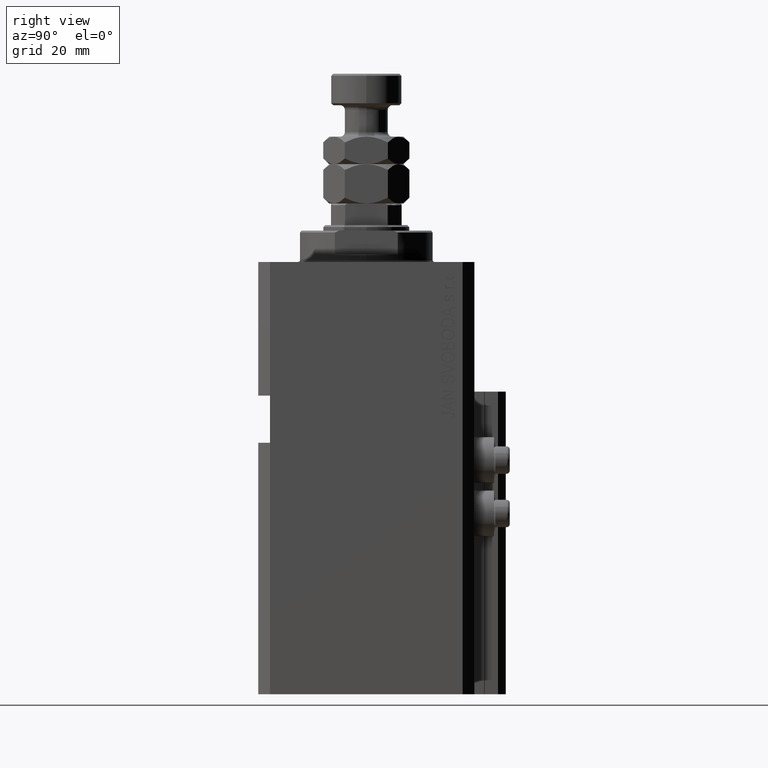
[diagram: clean part render]
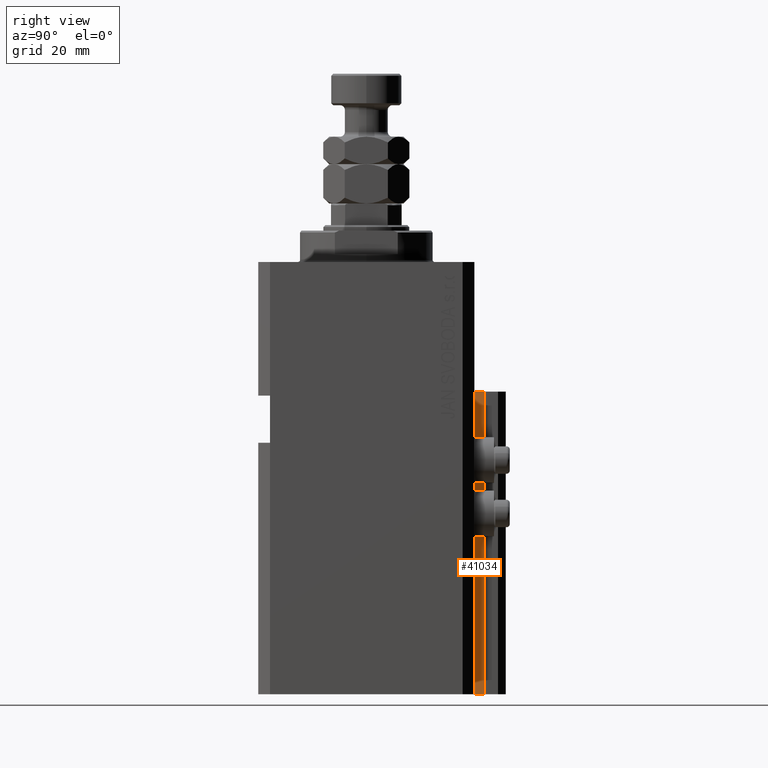
[diagram: same view with one face highlighted and labeled with its STEP entity id]
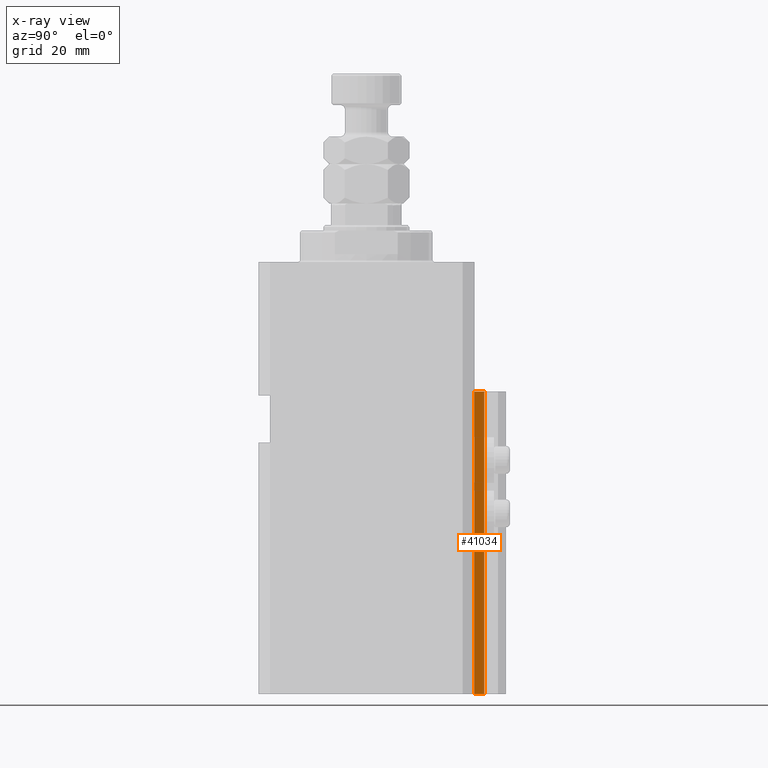
[diagram: x-ray of the same camera — body ghosted, the highlighted face saturated]
A machine part, right view. The second image highlights one B-rep face of the part: STEP entity #41034.
The next image is the same camera in x-ray: the body ghosted, the highlighted face saturated — about 0% of this face is hidden behind the body in this view.
In plain terms, the highlighted planar face has unit normal (1, 0, 0).
Its self-contained STEP definition (entity closure, byte-faithful):
#480 = CARTESIAN_POINT ( 'NONE',  ( 14.49999999999999645, 30.00000000000002487, -33.00000000000000000 ) ) ;
#2216 = ORIENTED_EDGE ( 'NONE', *, *, #2683, .F. ) ;
#2246 = DIRECTION ( 'NONE',  ( 0.000000000000000000, 0.000000000000000000, 1.000000000000000000 ) ) ;
#2683 = EDGE_CURVE ( 'NONE', #4185, #40433, #32013, .T. ) ;
#4185 = VERTEX_POINT ( 'NONE', #8622 ) ;
#5166 = EDGE_CURVE ( 'NONE', #21520, #23866, #31088, .T. ) ;
#5527 = CARTESIAN_POINT ( 'NONE',  ( 14.49999999999999645, 27.50000000000000355, -33.00000000000000000 ) ) ;
#6853 = EDGE_LOOP ( 'NONE', ( #2216, #41243, #48468, #19104 ) ) ;
#6929 = DIRECTION ( 'NONE',  ( 0.000000000000000000, 0.000000000000000000, -1.000000000000000000 ) ) ;
#7173 = FACE_OUTER_BOUND ( 'NONE', #6853, .T. ) ;
#8622 = CARTESIAN_POINT ( 'NONE',  ( 14.49999999999999645, 27.50000000000000355, -33.00000000000000000 ) ) ;
#8867 = CARTESIAN_POINT ( 'NONE',  ( 14.49999999999999645, 30.00000000000002487, -110.0000000000000000 ) ) ;
#9599 = LINE ( 'NONE', #8867, #13212 ) ;
#13212 = VECTOR ( 'NONE', #2246, 1000.000000000000000 ) ;
#13586 = CARTESIAN_POINT ( 'NONE',  ( 14.49999999999999645, 27.50000000000000355, -110.0000000000000000 ) ) ;
#17264 = LINE ( 'NONE', #13586, #25488 ) ;
#19104 = ORIENTED_EDGE ( 'NONE', *, *, #30603, .T. ) ;
#20908 = AXIS2_PLACEMENT_3D ( 'NONE', #37316, #26288, #6929 ) ;
#21520 = VERTEX_POINT ( 'NONE', #48183 ) ;
#21647 = PLANE ( 'NONE',  #20908 ) ;
#23866 = VERTEX_POINT ( 'NONE', #41985 ) ;
#25488 = VECTOR ( 'NONE', #39800, 1000.000000000000000 ) ;
#26288 = DIRECTION ( 'NONE',  ( 1.000000000000000000, 0.000000000000000000, 0.000000000000000000 ) ) ;
#27353 = VECTOR ( 'NONE', #27412, 1000.000000000000000 ) ;
#27412 = DIRECTION ( 'NONE',  ( 0.000000000000000000, 1.000000000000000000, 0.000000000000000000 ) ) ;
#30603 = EDGE_CURVE ( 'NONE', #23866, #40433, #9599, .T. ) ;
#31088 = LINE ( 'NONE', #31329, #27353 ) ;
#31329 = CARTESIAN_POINT ( 'NONE',  ( 14.49999999999999645, 27.50000000000000355, -110.0000000000000000 ) ) ;
#32013 = LINE ( 'NONE', #5527, #35080 ) ;
#35080 = VECTOR ( 'NONE', #46217, 1000.000000000000000 ) ;
#37316 = CARTESIAN_POINT ( 'NONE',  ( 14.49999999999999645, 27.50000000000000355, -110.0000000000000000 ) ) ;
#37951 = EDGE_CURVE ( 'NONE', #21520, #4185, #17264, .T. ) ;
#39800 = DIRECTION ( 'NONE',  ( 0.000000000000000000, 0.000000000000000000, 1.000000000000000000 ) ) ;
#40433 = VERTEX_POINT ( 'NONE', #480 ) ;
#41034 = ADVANCED_FACE ( 'NONE', ( #7173 ), #21647, .T. ) ;
#41243 = ORIENTED_EDGE ( 'NONE', *, *, #37951, .F. ) ;
#41985 = CARTESIAN_POINT ( 'NONE',  ( 14.49999999999999645, 30.00000000000002487, -110.0000000000000000 ) ) ;
#46217 = DIRECTION ( 'NONE',  ( 0.000000000000000000, 1.000000000000000000, 0.000000000000000000 ) ) ;
#48183 = CARTESIAN_POINT ( 'NONE',  ( 14.49999999999999645, 27.50000000000000355, -110.0000000000000000 ) ) ;
#48468 = ORIENTED_EDGE ( 'NONE', *, *, #5166, .T. ) ;